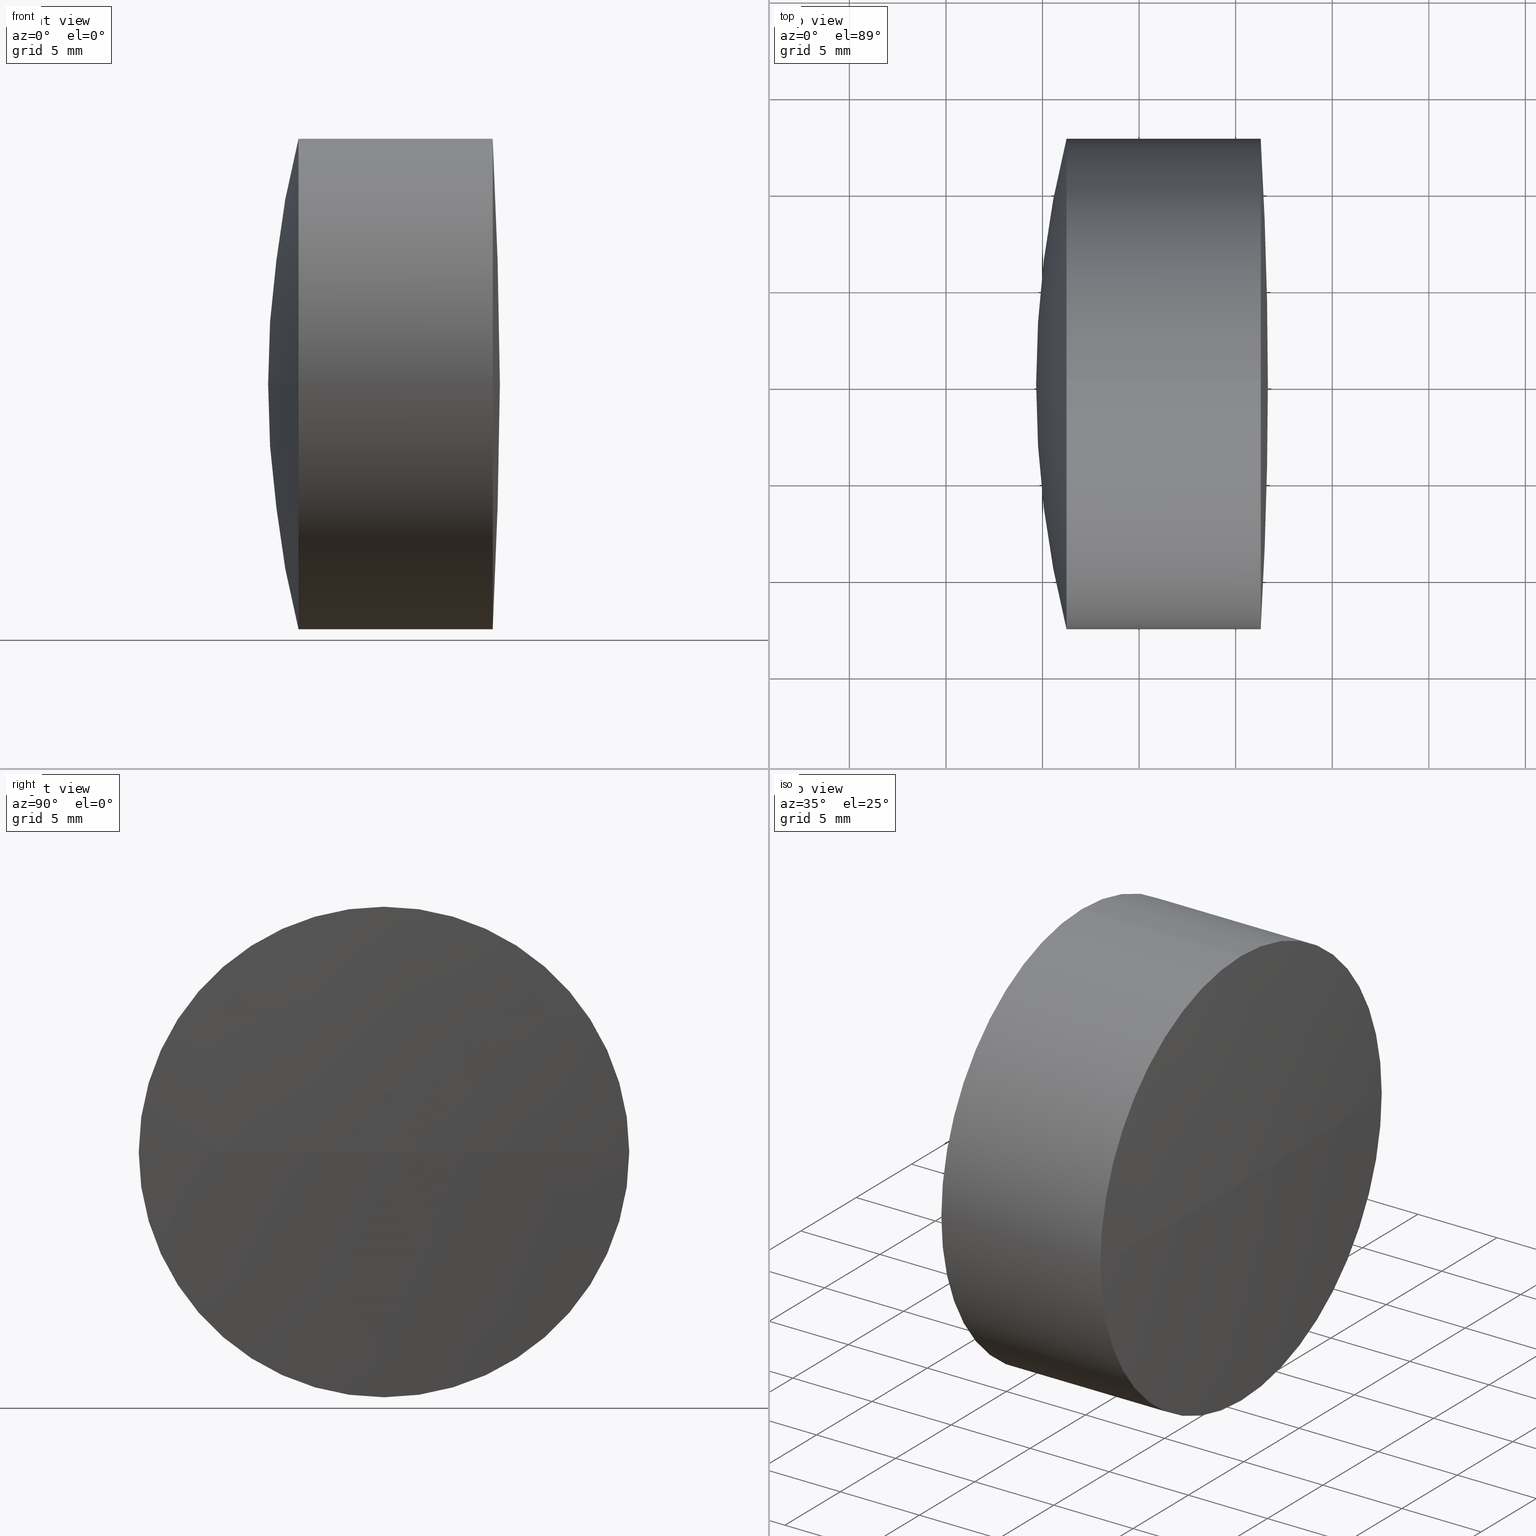
[diagram: canonical four-view strip — front | top / right | iso, engineering-drawing reading convention]
A machine part, canonical four-view strip (front | top / right | iso — engineering-drawing reading convention). The complete STEP part file that produces these views, byte-faithful:
ISO-10303-21;
HEADER;
FILE_DESCRIPTION (( 'STEP AP203' ),
    '1' );
FILE_NAME ('145277.STEP',
    '2024-05-11T08:07:24',
    ( '' ),
    ( '' ),
    'SwSTEP 2.0',
    'SolidWorks 2020',
    '' );
FILE_SCHEMA (( 'CONFIG_CONTROL_DESIGN' ));
ENDSEC;

DATA;
#1 = COORDINATED_UNIVERSAL_TIME_OFFSET ( 8, 0, .AHEAD. ) ;
#2 = EDGE_CURVE ( 'NONE', #371, #37, #71, .T. ) ;
#3 = DIRECTION ( 'NONE',  ( 0.000000000000000000, 0.000000000000000000, 1.000000000000000000 ) ) ;
#4 = AXIS2_PLACEMENT_3D ( 'NONE', #197, #401, #18 ) ;
#5 = COORDINATED_UNIVERSAL_TIME_OFFSET ( 8, 0, .AHEAD. ) ;
#6 = CC_DESIGN_APPROVAL ( #232, ( #361 ) ) ;
#7 = CARTESIAN_POINT ( 'NONE',  ( -13.75656378347417785, 0.04597092655642146669, 12.69999999999999929 ) ) ;
#8 = EDGE_CURVE ( 'NONE', #280, #40, #249, .T. ) ;
#9 = EDGE_LOOP ( 'NONE', ( #392, #427, #104, #17, #11, #327 ) ) ;
#10 = AXIS2_PLACEMENT_3D ( 'NONE', #446, #35, #73 ) ;
#11 = ORIENTED_EDGE ( 'NONE', *, *, #257, .F. ) ;
#12 = ORIENTED_EDGE ( 'NONE', *, *, #202, .T. ) ;
#13 = DIRECTION ( 'NONE',  ( -1.000000000000000000, -0.000000000000000000, -0.000000000000000000 ) ) ;
#14 = CIRCLE ( 'NONE', #77, 43.35999999999999943 ) ;
#15 = EDGE_LOOP ( 'NONE', ( #201, #159, #430, #196 ) ) ;
#16 = ADVANCED_FACE ( 'NONE', ( #126 ), #199, .T. ) ;
#17 = ORIENTED_EDGE ( 'NONE', *, *, #2, .F. ) ;
#18 = DIRECTION ( 'NONE',  ( 0.000000000000000000, 0.000000000000000000, 1.000000000000000000 ) ) ;
#19 = ORIENTED_EDGE ( 'NONE', *, *, #91, .F. ) ;
#20 = DIRECTION ( 'NONE',  ( -1.000000000000000000, -0.000000000000000000, -0.000000000000000000 ) ) ;
#21 = ORIENTED_EDGE ( 'NONE', *, *, #367, .T. ) ;
#22 = VECTOR ( 'NONE', #51, 1000.000000000000000 ) ;
#23 = CARTESIAN_POINT ( 'NONE',  ( -50.69189733283689492, 0.04597092655641990544, 25.39999999999999858 ) ) ;
#24 = DIRECTION ( 'NONE',  ( 0.000000000000000000, 1.000000000000000000, 0.000000000000000000 ) ) ;
#25 = CC_DESIGN_PERSON_AND_ORGANIZATION_ASSIGNMENT ( #418, #79, ( #361 ) ) ;
#26 = CARTESIAN_POINT ( 'NONE',  ( -7.331897332836893710, 0.04597092655642256304, 25.39999999999999858 ) ) ;
#27 = ORIENTED_EDGE ( 'NONE', *, *, #153, .T. ) ;
#28 = DIRECTION ( 'NONE',  ( 0.000000000000000000, 0.000000000000000000, 1.000000000000000000 ) ) ;
#29 = CALENDAR_DATE ( 2024, 11, 5 ) ;
#30 = ADVANCED_FACE ( 'NONE', ( #259 ), #398, .T. ) ;
#31 = LOCAL_TIME ( 16, 7, 24.00000000000000000, #447 ) ;
#32 = CARTESIAN_POINT ( 'NONE',  ( -7.331897332836897263, 0.04597092655642145975, 12.69999999999999929 ) ) ;
#33 = PERSON_AND_ORGANIZATION ( #260, #177 ) ;
#34 = VECTOR ( 'NONE', #315, 1000.000000000000000 ) ;
#35 = DIRECTION ( 'NONE',  ( 0.000000000000000000, 1.224646799147353207E-16, -1.000000000000000000 ) ) ;
#36 = DIRECTION ( 'NONE',  ( 0.000000000000000000, 0.000000000000000000, 1.000000000000000000 ) ) ;
#37 = VERTEX_POINT ( 'NONE', #129 ) ;
#38 = EDGE_CURVE ( 'NONE', #102, #225, #302, .T. ) ;
#39 = DIRECTION ( 'NONE',  ( -0.000000000000000000, 0.000000000000000000, 1.000000000000000000 ) ) ;
#40 = VERTEX_POINT ( 'NONE', #92 ) ;
#41 = PERSON_AND_ORGANIZATION_ROLE ( 'creator' ) ;
#42 = AXIS2_PLACEMENT_3D ( 'NONE', #62, #437, #172 ) ;
#43 = CIRCLE ( 'NONE', #190, 12.69999999999999574 ) ;
#44 = CLOSED_SHELL ( 'NONE', ( #135, #386, #30, #214, #57, #175 ) ) ;
#45 = DIRECTION ( 'NONE',  ( -0.000000000000000000, 0.000000000000000000, -1.000000000000000000 ) ) ;
#46 = EDGE_CURVE ( 'NONE', #125, #123, #433, .T. ) ;
#47 = LOCAL_TIME ( 16, 7, 24.00000000000000000, #385 ) ;
#48 = EDGE_LOOP ( 'NONE', ( #164, #128, #333, #326 ) ) ;
#49 = DIRECTION ( 'NONE',  ( 0.000000000000000000, 1.000000000000000000, 0.000000000000000000 ) ) ;
#50 = ORIENTED_EDGE ( 'NONE', *, *, #408, .T. ) ;
#51 = DIRECTION ( 'NONE',  ( -1.000000000000000000, -0.000000000000000000, -0.000000000000000000 ) ) ;
#52 = ORIENTED_EDGE ( 'NONE', *, *, #282, .F. ) ;
#53 = DIRECTION ( 'NONE',  ( -1.000000000000000000, -0.000000000000000000, -0.000000000000000000 ) ) ;
#54 = CARTESIAN_POINT ( 'NONE',  ( -9.233489259202418253, 0.04597092655641990544, 38.09999999999999432 ) ) ;
#55 = AXIS2_PLACEMENT_3D ( 'NONE', #419, #362, #291 ) ;
#56 = ORIENTED_EDGE ( 'NONE', *, *, #91, .T. ) ;
#57 = ADVANCED_FACE ( 'NONE', ( #240 ), #103, .T. ) ;
#58 = CARTESIAN_POINT ( 'NONE',  ( -15.33189733283689016, 0.04597092655641990544, 38.09999999999999432 ) ) ;
#59 = EDGE_LOOP ( 'NONE', ( #416, #308, #87, #94 ) ) ;
#60 = CARTESIAN_POINT ( 'NONE',  ( -13.75656378347417963, 12.74597092655643138, 25.39999999999999858 ) ) ;
#61 = ORIENTED_EDGE ( 'NONE', *, *, #46, .T. ) ;
#62 = CARTESIAN_POINT ( 'NONE',  ( -220.7018973328368929, 0.04597092655641990544, 25.39999999999999858 ) ) ;
#63 = EDGE_CURVE ( 'NONE', #125, #203, #303, .T. ) ;
#64 = CARTESIAN_POINT ( 'NONE',  ( -9.233489259202423582, 0.04597092655641990544, 25.39999999999999858 ) ) ;
#65 = MANIFOLD_SOLID_BREP ( '145277a-1-solid1', #44 ) ;
#66 = DIRECTION ( 'NONE',  ( 0.000000000000000000, 0.000000000000000000, 1.000000000000000000 ) ) ;
#67 = CIRCLE ( 'NONE', #320, 12.69999999999999574 ) ;
#68 = EDGE_CURVE ( 'NONE', #203, #115, #278, .T. ) ;
#69 = CARTESIAN_POINT ( 'NONE',  ( -3.703217843767207196, 0.04597092655642145975, 12.69999999999999929 ) ) ;
#70 = PERSON_AND_ORGANIZATION ( #260, #177 ) ;
#71 = CIRCLE ( 'NONE', #112, 12.69999999999999574 ) ;
#72 = DIRECTION ( 'NONE',  ( -1.000000000000000000, -0.000000000000000000, -0.000000000000000000 ) ) ;
#73 = DIRECTION ( 'NONE',  ( 0.000000000000000000, 1.000000000000000000, 1.276881612716976152E-16 ) ) ;
#74 = CALENDAR_DATE ( 2024, 11, 5 ) ;
#75 = CARTESIAN_POINT ( 'NONE',  ( -50.69189733283689492, 0.04597092655641990544, 25.39999999999999858 ) ) ;
#76 = PRODUCT_RELATED_PRODUCT_CATEGORY ( 'detail', '', ( #350 ) ) ;
#77 = AXIS2_PLACEMENT_3D ( 'NONE', #422, #192, #325 ) ;
#78 = DIRECTION ( 'NONE',  ( -1.000000000000000000, -0.000000000000000000, -0.000000000000000000 ) ) ;
#79 = PERSON_AND_ORGANIZATION_ROLE ( 'design_supplier' ) ;
#80 = ORIENTED_EDGE ( 'NONE', *, *, #246, .T. ) ;
#81 = PERSON_AND_ORGANIZATION ( #260, #177 ) ;
#82 = ADVANCED_FACE ( 'NONE', ( #166 ), #96, .F. ) ;
#83 = APPROVAL_STATUS ( 'not_yet_approved' ) ;
#84 = AXIS2_PLACEMENT_3D ( 'NONE', #403, #204, #90 ) ;
#85 = DATE_AND_TIME ( #323, #31 ) ;
#86 = ORIENTED_EDGE ( 'NONE', *, *, #408, .F. ) ;
#87 = ORIENTED_EDGE ( 'NONE', *, *, #355, .T. ) ;
#88 = CARTESIAN_POINT ( 'NONE',  ( -3.703217843767207196, 0.04597092655641990544, 25.39999999999999858 ) ) ;
#89 = DIRECTION ( 'NONE',  ( -1.000000000000000000, -0.000000000000000000, -0.000000000000000000 ) ) ;
#90 = DIRECTION ( 'NONE',  ( 0.000000000000000000, 0.000000000000000000, 1.000000000000000000 ) ) ;
#91 = EDGE_CURVE ( 'NONE', #263, #298, #264, .T. ) ;
#92 = CARTESIAN_POINT ( 'NONE',  ( -9.233489259202420030, -12.65402907344357786, 25.39999999999999858 ) ) ;
#93 = DIRECTION ( 'NONE',  ( 0.000000000000000000, 1.000000000000000000, 0.000000000000000000 ) ) ;
#94 = ORIENTED_EDGE ( 'NONE', *, *, #8, .T. ) ;
#95 = LOCAL_TIME ( 16, 7, 24.00000000000000000, #1 ) ;
#96 = SPHERICAL_SURFACE ( 'NONE', #341, 43.35999999999999943 ) ;
#97 = ORIENTED_EDGE ( 'NONE', *, *, #63, .T. ) ;
#98 = APPLICATION_CONTEXT ( 'configuration controlled 3d designs of mechanical parts and assemblies' ) ;
#99 = EDGE_CURVE ( 'NONE', #337, #271, #357, .T. ) ;
#100 = AXIS2_PLACEMENT_3D ( 'NONE', #279, #181, #344 ) ;
#101 = CARTESIAN_POINT ( 'NONE',  ( -50.69189733283689492, 0.04597092655641990544, 25.39999999999999858 ) ) ;
#102 = VERTEX_POINT ( 'NONE', #239 ) ;
#103 = SPHERICAL_SURFACE ( 'NONE', #221, 43.35999999999999943 ) ;
#104 = ORIENTED_EDGE ( 'NONE', *, *, #355, .F. ) ;
#105 = FACE_OUTER_BOUND ( 'NONE', #431, .T. ) ;
#106 = EDGE_CURVE ( 'NONE', #387, #290, #130, .T. ) ;
#107 = DIRECTION ( 'NONE',  ( -1.000000000000000000, -0.000000000000000000, -0.000000000000000000 ) ) ;
#108 = DATE_AND_TIME ( #346, #155 ) ;
#109 = AXIS2_PLACEMENT_3D ( 'NONE', #200, #13, #270 ) ;
#110 = CARTESIAN_POINT ( 'NONE',  ( -15.33189733283689016, 0.04597092655642146669, 12.69999999999999929 ) ) ;
#111 = CIRCLE ( 'NONE', #359, 12.69999999999999574 ) ;
#112 = AXIS2_PLACEMENT_3D ( 'NONE', #364, #53, #428 ) ;
#113 = CC_DESIGN_SECURITY_CLASSIFICATION ( #421, ( #361 ) ) ;
#114 = CARTESIAN_POINT ( 'NONE',  ( -3.703217843767205419, 12.74597092655644914, 25.39999999999999858 ) ) ;
#115 = VERTEX_POINT ( 'NONE', #60 ) ;
#116 = CC_DESIGN_DATE_AND_TIME_ASSIGNMENT ( #108, #440, ( #306 ) ) ;
#117 = DIRECTION ( 'NONE',  ( -1.000000000000000000, -0.000000000000000000, -0.000000000000000000 ) ) ;
#118 = APPROVAL_DATE_TIME ( #388, #420 ) ;
#119 = AXIS2_PLACEMENT_3D ( 'NONE', #75, #45, #49 ) ;
#120 = ADVANCED_FACE ( 'NONE', ( #432 ), #370, .T. ) ;
#121 = CARTESIAN_POINT ( 'NONE',  ( -220.7018973328368929, 0.04597092655641990544, 25.39999999999999858 ) ) ;
#122 = FACE_OUTER_BOUND ( 'NONE', #9, .T. ) ;
#123 = VERTEX_POINT ( 'NONE', #207 ) ;
#124 = CARTESIAN_POINT ( 'NONE',  ( -7.331897332836897263, 0.04597092655641990544, 25.39999999999999858 ) ) ;
#125 = VERTEX_POINT ( 'NONE', #54 ) ;
#126 = FACE_OUTER_BOUND ( 'NONE', #391, .T. ) ;
#127 = DIRECTION ( 'NONE',  ( 0.000000000000000000, 1.000000000000000000, 0.000000000000000000 ) ) ;
#128 = ORIENTED_EDGE ( 'NONE', *, *, #106, .T. ) ;
#129 = CARTESIAN_POINT ( 'NONE',  ( -9.233489259202420030, 12.74597092655641717, 25.39999999999999858 ) ) ;
#130 = CIRCLE ( 'NONE', #397, 12.69999999999999574 ) ;
#131 = EDGE_LOOP ( 'NONE', ( #389, #269, #27, #97, #198, #193 ) ) ;
#132 = AXIS2_PLACEMENT_3D ( 'NONE', #212, #72, #144 ) ;
#133 = DIRECTION ( 'NONE',  ( -1.000000000000000000, -0.000000000000000000, -0.000000000000000000 ) ) ;
#134 = ORIENTED_EDGE ( 'NONE', *, *, #277, .T. ) ;
#135 = ADVANCED_FACE ( 'NONE', ( #434 ), #136, .T. ) ;
#136 = CYLINDRICAL_SURFACE ( 'NONE', #109, 12.69999999999999574 ) ;
#137 = ORIENTED_EDGE ( 'NONE', *, *, #277, .F. ) ;
#138 = DIRECTION ( 'NONE',  ( -0.000000000000000000, 0.000000000000000000, -1.000000000000000000 ) ) ;
#139 = CARTESIAN_POINT ( 'NONE',  ( -13.75656378347417785, 0.04597092655641990544, 25.39999999999999858 ) ) ;
#140 = APPROVAL_STATUS ( 'not_yet_approved' ) ;
#141 = AXIS2_PLACEMENT_3D ( 'NONE', #121, #39, #256 ) ;
#142 = CARTESIAN_POINT ( 'NONE',  ( -9.233489259202418253, 0.04597092655641990544, 25.39999999999999858 ) ) ;
#143 = ADVANCED_FACE ( 'NONE', ( #162 ), #438, .F. ) ;
#144 = DIRECTION ( 'NONE',  ( 0.000000000000000000, 0.000000000000000000, 1.000000000000000000 ) ) ;
#145 = AXIS2_PLACEMENT_3D ( 'NONE', #332, #20, #336 ) ;
#146 = FACE_OUTER_BOUND ( 'NONE', #131, .T. ) ;
#147 = ORIENTED_EDGE ( 'NONE', *, *, #99, .T. ) ;
#148 = ADVANCED_FACE ( 'NONE', ( #273 ), #297, .T. ) ;
#149 = CARTESIAN_POINT ( 'NONE',  ( -9.233489259202418253, 0.04597092655641990544, 25.39999999999999858 ) ) ;
#150 = PERSON_AND_ORGANIZATION_ROLE ( 'classification_officer' ) ;
#151 = AXIS2_PLACEMENT_3D ( 'NONE', #365, #294, #234 ) ;
#152 = MECHANICAL_CONTEXT ( 'NONE', #353, 'mechanical' ) ;
#153 = EDGE_CURVE ( 'NONE', #271, #125, #188, .T. ) ;
#154 = CARTESIAN_POINT ( 'NONE',  ( -7.331897332836897263, 0.04597092655641990544, 25.39999999999999858 ) ) ;
#155 = LOCAL_TIME ( 16, 7, 24.00000000000000000, #5 ) ;
#156 =( NAMED_UNIT ( * ) PLANE_ANGLE_UNIT ( ) SI_UNIT ( $, .RADIAN. ) );
#157 = ORIENTED_EDGE ( 'NONE', *, *, #179, .T. ) ;
#158 = CIRCLE ( 'NONE', #347, 51.97999999999999687 ) ;
#159 = ORIENTED_EDGE ( 'NONE', *, *, #445, .T. ) ;
#160 = APPROVAL ( #349, 'δָ��' ) ;
#161 = ORIENTED_EDGE ( 'NONE', *, *, #379, .T. ) ;
#162 = FACE_OUTER_BOUND ( 'NONE', #205, .T. ) ;
#163 = DESIGN_CONTEXT ( 'detailed design', #98, 'design' ) ;
#164 = ORIENTED_EDGE ( 'NONE', *, *, #351, .T. ) ;
#165 = DIRECTION ( 'NONE',  ( 0.000000000000000000, 0.000000000000000000, 1.000000000000000000 ) ) ;
#166 = FACE_OUTER_BOUND ( 'NONE', #59, .T. ) ;
#167 = AXIS2_PLACEMENT_3D ( 'NONE', #266, #399, #93 ) ;
#168 = EDGE_CURVE ( 'NONE', #225, #263, #67, .T. ) ;
#169 = AXIS2_PLACEMENT_3D ( 'NONE', #149, #443, #313 ) ;
#170 = DIRECTION ( 'NONE',  ( -0.000000000000000000, 0.000000000000000000, -1.000000000000000000 ) ) ;
#171 = CC_DESIGN_APPROVAL ( #420, ( #306 ) ) ;
#172 = DIRECTION ( 'NONE',  ( 0.000000000000000000, 1.000000000000000000, 0.000000000000000000 ) ) ;
#173 = EDGE_LOOP ( 'NONE', ( #134, #157, #293, #227, #295, #61 ) ) ;
#174 = SPHERICAL_SURFACE ( 'NONE', #404, 51.97999999999999687 ) ;
#175 = ADVANCED_FACE ( 'NONE', ( #146 ), #439, .T. ) ;
#176 = DIRECTION ( 'NONE',  ( -0.000000000000000000, 0.000000000000000000, 1.000000000000000000 ) ) ;
#177 = ORGANIZATION ( 'δָ��', 'δָ��', '' ) ;
#178 = CIRCLE ( 'NONE', #369, 51.97999999999999687 ) ;
#179 = EDGE_CURVE ( 'NONE', #230, #387, #215, .T. ) ;
#180 = PRODUCT_DEFINITION_SHAPE ( 'NONE', 'NONE',  #306 ) ;
#181 = DIRECTION ( 'NONE',  ( -1.000000000000000000, -0.000000000000000000, -0.000000000000000000 ) ) ;
#182 = APPROVAL_ROLE ( '' ) ;
#183 = APPLICATION_PROTOCOL_DEFINITION ( 'international standard', 'config_control_design', 1994, #98 ) ;
#184 = PERSON_AND_ORGANIZATION_ROLE ( 'creator' ) ;
#185 = ORIENTED_EDGE ( 'NONE', *, *, #241, .T. ) ;
#186 = SPHERICAL_SURFACE ( 'NONE', #119, 43.35999999999999943 ) ;
#187 = ORIENTED_EDGE ( 'NONE', *, *, #153, .F. ) ;
#188 = CIRCLE ( 'NONE', #145, 12.69999999999999574 ) ;
#189 = DIRECTION ( 'NONE',  ( 0.000000000000000000, 0.000000000000000000, 1.000000000000000000 ) ) ;
#190 = AXIS2_PLACEMENT_3D ( 'NONE', #142, #117, #28 ) ;
#191 = AXIS2_PLACEMENT_3D ( 'NONE', #261, #395, #265 ) ;
#192 = DIRECTION ( 'NONE',  ( -0.000000000000000000, 0.000000000000000000, 1.000000000000000000 ) ) ;
#193 = ORIENTED_EDGE ( 'NONE', *, *, #106, .F. ) ;
#194 = CARTESIAN_POINT ( 'NONE',  ( -9.233489259202423582, 0.04597092655641990544, 38.09999999999999432 ) ) ;
#195 = EDGE_CURVE ( 'NONE', #290, #363, #178, .T. ) ;
#196 = ORIENTED_EDGE ( 'NONE', *, *, #379, .F. ) ;
#197 = CARTESIAN_POINT ( 'NONE',  ( -13.75656378347417785, 0.04597092655641990544, 25.39999999999999858 ) ) ;
#198 = ORIENTED_EDGE ( 'NONE', *, *, #202, .F. ) ;
#199 = CYLINDRICAL_SURFACE ( 'NONE', #377, 12.69999999999999574 ) ;
#200 = CARTESIAN_POINT ( 'NONE',  ( -15.33189733283689016, 0.04597092655641990544, 25.39999999999999858 ) ) ;
#201 = ORIENTED_EDGE ( 'NONE', *, *, #246, .F. ) ;
#202 = EDGE_CURVE ( 'NONE', #290, #203, #238, .T. ) ;
#203 = VERTEX_POINT ( 'NONE', #310 ) ;
#204 = DIRECTION ( 'NONE',  ( -1.000000000000000000, -0.000000000000000000, -0.000000000000000000 ) ) ;
#205 = EDGE_LOOP ( 'NONE', ( #305, #21, #206, #324 ) ) ;
#206 = ORIENTED_EDGE ( 'NONE', *, *, #287, .T. ) ;
#207 = CARTESIAN_POINT ( 'NONE',  ( -9.233489259202416477, 12.74597092655641717, 25.39999999999999858 ) ) ;
#208 = ORIENTED_EDGE ( 'NONE', *, *, #445, .F. ) ;
#209 = CARTESIAN_POINT ( 'NONE',  ( -50.69189733283689492, 0.04597092655641990544, 25.39999999999999858 ) ) ;
#210 = CC_DESIGN_PERSON_AND_ORGANIZATION_ASSIGNMENT ( #70, #184, ( #361 ) ) ;
#211 = DIRECTION ( 'NONE',  ( -0.000000000000000000, 0.000000000000000000, 1.000000000000000000 ) ) ;
#212 = CARTESIAN_POINT ( 'NONE',  ( -9.233489259202423582, 0.04597092655641990544, 25.39999999999999858 ) ) ;
#213 = APPROVAL_PERSON_ORGANIZATION ( #33, #232, #373 ) ;
#214 = ADVANCED_FACE ( 'NONE', ( #105 ), #174, .T. ) ;
#215 = LINE ( 'NONE', #110, #289 ) ;
#216 = CARTESIAN_POINT ( 'NONE',  ( 36.64810266716310139, 0.04597092655641990544, 25.39999999999999858 ) ) ;
#217 = CIRCLE ( 'NONE', #10, 217.3700000000000045 ) ;
#218 = SECURITY_CLASSIFICATION_LEVEL ( 'unclassified' ) ;
#219 = DATE_AND_TIME ( #74, #47 ) ;
#220 = CARTESIAN_POINT ( 'NONE',  ( -15.33189733283689371, 0.04597092655642309039, 25.39999999999999858 ) ) ;
#221 = AXIS2_PLACEMENT_3D ( 'NONE', #236, #334, #127 ) ;
#222 = CARTESIAN_POINT ( 'NONE',  ( -3.703217843767207196, 0.04597092655641990544, 25.39999999999999858 ) ) ;
#223 = CARTESIAN_POINT ( 'NONE',  ( -7.331897332836893710, 0.04597092655642255610, 25.39999999999999858 ) ) ;
#224 = EDGE_CURVE ( 'NONE', #263, #280, #345, .T. ) ;
#225 = VERTEX_POINT ( 'NONE', #114 ) ;
#226 = LINE ( 'NONE', #317, #374 ) ;
#227 = ORIENTED_EDGE ( 'NONE', *, *, #68, .F. ) ;
#228 = DIRECTION ( 'NONE',  ( 0.000000000000000000, 0.000000000000000000, 1.000000000000000000 ) ) ;
#229 = CARTESIAN_POINT ( 'NONE',  ( -13.75656378347417785, 0.04597092655641990544, 25.39999999999999858 ) ) ;
#230 = VERTEX_POINT ( 'NONE', #372 ) ;
#231 = MANIFOLD_SOLID_BREP ( '145277b-1-solid1', #322 ) ;
#232 = APPROVAL ( #140, 'δָ��' ) ;
#233 = DIRECTION ( 'NONE',  ( -1.000000000000000000, -0.000000000000000000, -0.000000000000000000 ) ) ;
#234 = DIRECTION ( 'NONE',  ( 0.000000000000000000, 0.000000000000000000, 1.000000000000000000 ) ) ;
#235 = AXIS2_PLACEMENT_3D ( 'NONE', #286, #3, #253 ) ;
#236 = CARTESIAN_POINT ( 'NONE',  ( -50.69189733283689492, 0.04597092655641990544, 25.39999999999999858 ) ) ;
#237 = ORIENTED_EDGE ( 'NONE', *, *, #8, .F. ) ;
#238 = CIRCLE ( 'NONE', #424, 12.69999999999999574 ) ;
#239 = CARTESIAN_POINT ( 'NONE',  ( -3.703217843767207196, 0.04597092655641990544, 38.09999999999999432 ) ) ;
#240 = FACE_OUTER_BOUND ( 'NONE', #400, .T. ) ;
#241 = EDGE_CURVE ( 'NONE', #115, #363, #158, .T. ) ;
#242 = DIRECTION ( 'NONE',  ( 0.000000000000000000, 1.000000000000000000, 0.000000000000000000 ) ) ;
#243 = CARTESIAN_POINT ( 'NONE',  ( -3.331897332836897263, 0.04597092655643320730, 25.39999999999999858 ) ) ;
#244 = APPROVAL_DATE_TIME ( #312, #232 ) ;
#245 = AXIS2_PLACEMENT_3D ( 'NONE', #406, #138, #429 ) ;
#246 = EDGE_CURVE ( 'NONE', #354, #298, #217, .T. ) ;
#247 = AXIS2_PLACEMENT_3D ( 'NONE', #64, #248, #444 ) ;
#248 = DIRECTION ( 'NONE',  ( -1.000000000000000000, -0.000000000000000000, -0.000000000000000000 ) ) ;
#249 = CIRCLE ( 'NONE', #360, 12.69999999999999574 ) ;
#250 = APPROVAL_PERSON_ORGANIZATION ( #356, #420, #319 ) ;
#251 = CARTESIAN_POINT ( 'NONE',  ( 36.64810266716310139, 0.04597092655641990544, 25.39999999999999858 ) ) ;
#252 = PERSON_AND_ORGANIZATION ( #260, #177 ) ;
#253 = DIRECTION ( 'NONE',  ( 1.000000000000000000, 0.000000000000000000, 0.000000000000000000 ) ) ;
#254 = AXIS2_PLACEMENT_3D ( 'NONE', #154, #78, #36 ) ;
#255 = PERSON_AND_ORGANIZATION_ROLE ( 'design_owner' ) ;
#256 = DIRECTION ( 'NONE',  ( 1.000000000000000000, 0.000000000000000000, 0.000000000000000000 ) ) ;
#257 = EDGE_CURVE ( 'NONE', #102, #371, #226, .T. ) ;
#258 = ORIENTED_EDGE ( 'NONE', *, *, #224, .F. ) ;
#259 = FACE_OUTER_BOUND ( 'NONE', #48, .T. ) ;
#260 = PERSON ( 'δָ��', 'δָ��', 'δָ��', ('δָ��'), ('δָ��'), ('δָ��') ) ;
#261 = CARTESIAN_POINT ( 'NONE',  ( 36.64810266716310139, 0.04597092655641990544, 25.39999999999999858 ) ) ;
#262 = DIRECTION ( 'NONE',  ( 0.000000000000000000, 1.224646799147353207E-16, -1.000000000000000000 ) ) ;
#263 = VERTEX_POINT ( 'NONE', #69 ) ;
#264 = CIRCLE ( 'NONE', #84, 12.69999999999999574 ) ;
#265 = DIRECTION ( 'NONE',  ( 0.000000000000000000, 1.000000000000000000, 0.000000000000000000 ) ) ;
#266 = CARTESIAN_POINT ( 'NONE',  ( -220.7018973328368929, 0.04597092655641990544, 25.39999999999999858 ) ) ;
#267 = DIRECTION ( 'NONE',  ( 0.000000000000000000, 0.000000000000000000, 1.000000000000000000 ) ) ;
#268 = APPROVAL_PERSON_ORGANIZATION ( #252, #160, #182 ) ;
#269 = ORIENTED_EDGE ( 'NONE', *, *, #282, .T. ) ;
#270 = DIRECTION ( 'NONE',  ( 0.000000000000000000, 0.000000000000000000, 1.000000000000000000 ) ) ;
#271 = VERTEX_POINT ( 'NONE', #411 ) ;
#272 = CC_DESIGN_PERSON_AND_ORGANIZATION_ASSIGNMENT ( #81, #41, ( #306 ) ) ;
#273 = FACE_OUTER_BOUND ( 'NONE', #15, .T. ) ;
#274 = DIRECTION ( 'NONE',  ( -1.000000000000000000, -0.000000000000000000, -0.000000000000000000 ) ) ;
#275 = CIRCLE ( 'NONE', #442, 12.69999999999999574 ) ;
#276 = CARTESIAN_POINT ( 'NONE',  ( -13.75656378347417963, -12.65402907344359207, 25.39999999999999858 ) ) ;
#277 = EDGE_CURVE ( 'NONE', #123, #230, #376, .T. ) ;
#278 = CIRCLE ( 'NONE', #4, 12.69999999999999574 ) ;
#279 = CARTESIAN_POINT ( 'NONE',  ( -15.33189733283689016, 0.04597092655641990544, 25.39999999999999858 ) ) ;
#280 = VERTEX_POINT ( 'NONE', #281 ) ;
#281 = CARTESIAN_POINT ( 'NONE',  ( -9.233489259202423582, 0.04597092655642145975, 12.69999999999999929 ) ) ;
#282 = EDGE_CURVE ( 'NONE', #230, #271, #43, .T. ) ;
#283 = CALENDAR_DATE ( 2024, 11, 5 ) ;
#284 = PERSON_AND_ORGANIZATION ( #260, #177 ) ;
#285 = LOCAL_TIME ( 16, 7, 24.00000000000000000, #343 ) ;
#286 = CARTESIAN_POINT ( 'NONE',  ( 0.000000000000000000, 0.000000000000000000, 0.000000000000000000 ) ) ;
#287 = EDGE_CURVE ( 'NONE', #40, #371, #435, .T. ) ;
#288 = DIRECTION ( 'NONE',  ( -1.000000000000000000, -0.000000000000000000, -0.000000000000000000 ) ) ;
#289 = VECTOR ( 'NONE', #274, 1000.000000000000000 ) ;
#290 = VERTEX_POINT ( 'NONE', #276 ) ;
#291 = DIRECTION ( 'NONE',  ( 0.000000000000000000, 1.000000000000000000, 1.600298409572700259E-16 ) ) ;
#292 = ORIENTED_EDGE ( 'NONE', *, *, #46, .F. ) ;
#293 = ORIENTED_EDGE ( 'NONE', *, *, #351, .F. ) ;
#294 = DIRECTION ( 'NONE',  ( -1.000000000000000000, -0.000000000000000000, -0.000000000000000000 ) ) ;
#295 = ORIENTED_EDGE ( 'NONE', *, *, #63, .F. ) ;
#296 = DIRECTION ( 'NONE',  ( 0.000000000000000000, 0.000000000000000000, 1.000000000000000000 ) ) ;
#297 = SPHERICAL_SURFACE ( 'NONE', #167, 217.3700000000000045 ) ;
#298 = VERTEX_POINT ( 'NONE', #409 ) ;
#299 = AXIS2_PLACEMENT_3D ( 'NONE', #88, #89, #228 ) ;
#300 = CARTESIAN_POINT ( 'NONE',  ( -3.703217843767207196, 0.04597092655641990544, 25.39999999999999858 ) ) ;
#301 = AXIS2_PLACEMENT_3D ( 'NONE', #209, #211, #338 ) ;
#302 = CIRCLE ( 'NONE', #299, 12.69999999999999574 ) ;
#303 = LINE ( 'NONE', #58, #22 ) ;
#304 = CC_DESIGN_APPROVAL ( #160, ( #421 ) ) ;
#305 = ORIENTED_EDGE ( 'NONE', *, *, #335, .F. ) ;
#306 = PRODUCT_DEFINITION ( 'δ֪', '', #361, #163 ) ;
#307 = CARTESIAN_POINT ( 'NONE',  ( -13.75656378347417785, 0.04597092655641990544, 25.39999999999999858 ) ) ;
#308 = ORIENTED_EDGE ( 'NONE', *, *, #335, .T. ) ;
#309 = CC_DESIGN_PERSON_AND_ORGANIZATION_ASSIGNMENT ( #284, #255, ( #350 ) ) ;
#310 = CARTESIAN_POINT ( 'NONE',  ( -13.75656378347417785, 0.04597092655641990544, 38.09999999999999432 ) ) ;
#311 = CIRCLE ( 'NONE', #141, 217.3700000000000045 ) ;
#312 = DATE_AND_TIME ( #29, #285 ) ;
#313 = DIRECTION ( 'NONE',  ( 0.000000000000000000, 0.000000000000000000, 1.000000000000000000 ) ) ;
#314 = UNCERTAINTY_MEASURE_WITH_UNIT (LENGTH_MEASURE( 1.000000000000000082E-05 ), #382, 'distance_accuracy_value', 'NONE');
#315 = DIRECTION ( 'NONE',  ( -1.000000000000000000, -0.000000000000000000, -0.000000000000000000 ) ) ;
#316 = ORIENTED_EDGE ( 'NONE', *, *, #99, .F. ) ;
#317 = CARTESIAN_POINT ( 'NONE',  ( -7.331897332836897263, 0.04597092655641990544, 38.09999999999999432 ) ) ;
#318 = CC_DESIGN_DATE_AND_TIME_ASSIGNMENT ( #219, #414, ( #421 ) ) ;
#319 = APPROVAL_ROLE ( '' ) ;
#320 = AXIS2_PLACEMENT_3D ( 'NONE', #300, #133, #267 ) ;
#321 = CIRCLE ( 'NONE', #301, 43.35999999999999943 ) ;
#322 = CLOSED_SHELL ( 'NONE', ( #426, #120, #143, #82, #148, #16 ) ) ;
#323 = CALENDAR_DATE ( 2024, 11, 5 ) ;
#324 = ORIENTED_EDGE ( 'NONE', *, *, #2, .T. ) ;
#325 = DIRECTION ( 'NONE',  ( 1.000000000000000000, 0.000000000000000000, 0.000000000000000000 ) ) ;
#326 = ORIENTED_EDGE ( 'NONE', *, *, #241, .F. ) ;
#327 = ORIENTED_EDGE ( 'NONE', *, *, #38, .T. ) ;
#328 = CIRCLE ( 'NONE', #55, 43.35999999999999943 ) ;
#329 = DIRECTION ( 'NONE',  ( -1.000000000000000000, -0.000000000000000000, -0.000000000000000000 ) ) ;
#330 = DIRECTION ( 'NONE',  ( -1.000000000000000000, -0.000000000000000000, -0.000000000000000000 ) ) ;
#331 = ORIENTED_EDGE ( 'NONE', *, *, #287, .F. ) ;
#332 = CARTESIAN_POINT ( 'NONE',  ( -9.233489259202418253, 0.04597092655641990544, 25.39999999999999858 ) ) ;
#333 = ORIENTED_EDGE ( 'NONE', *, *, #195, .T. ) ;
#334 = DIRECTION ( 'NONE',  ( -0.000000000000000000, 0.000000000000000000, -1.000000000000000000 ) ) ;
#335 = EDGE_CURVE ( 'NONE', #405, #37, #321, .T. ) ;
#336 = DIRECTION ( 'NONE',  ( 0.000000000000000000, 0.000000000000000000, 1.000000000000000000 ) ) ;
#337 = VERTEX_POINT ( 'NONE', #26 ) ;
#338 = DIRECTION ( 'NONE',  ( 1.000000000000000000, 0.000000000000000000, 0.000000000000000000 ) ) ;
#339 = ORIENTED_EDGE ( 'NONE', *, *, #195, .F. ) ;
#340 = ADVANCED_BREP_SHAPE_REPRESENTATION ( '145277', ( #231, #65, #235 ), #415 ) ;
#341 = AXIS2_PLACEMENT_3D ( 'NONE', #101, #170, #24 ) ;
#342 = DIRECTION ( 'NONE',  ( 0.000000000000000000, 1.000000000000000000, 1.334916103098735929E-16 ) ) ;
#343 = COORDINATED_UNIVERSAL_TIME_OFFSET ( 8, 0, .AHEAD. ) ;
#344 = DIRECTION ( 'NONE',  ( 0.000000000000000000, 0.000000000000000000, 1.000000000000000000 ) ) ;
#345 = LINE ( 'NONE', #32, #34 ) ;
#346 = CALENDAR_DATE ( 2024, 11, 5 ) ;
#347 = AXIS2_PLACEMENT_3D ( 'NONE', #251, #176, #348 ) ;
#348 = DIRECTION ( 'NONE',  ( 1.000000000000000000, 0.000000000000000000, 0.000000000000000000 ) ) ;
#349 = APPROVAL_STATUS ( 'not_yet_approved' ) ;
#350 = PRODUCT ( '145277', '145277', '', ( #152 ) ) ;
#351 = EDGE_CURVE ( 'NONE', #115, #387, #111, .T. ) ;
#352 = APPLICATION_PROTOCOL_DEFINITION ( 'international standard', 'config_control_design', 1994, #353 ) ;
#353 = APPLICATION_CONTEXT ( 'configuration controlled 3d designs of mechanical parts and assemblies' ) ;
#354 = VERTEX_POINT ( 'NONE', #243 ) ;
#355 = EDGE_CURVE ( 'NONE', #37, #280, #412, .T. ) ;
#356 = PERSON_AND_ORGANIZATION ( #260, #177 ) ;
#357 = CIRCLE ( 'NONE', #410, 43.35999999999999943 ) ;
#358 = FACE_OUTER_BOUND ( 'NONE', #436, .T. ) ;
#359 = AXIS2_PLACEMENT_3D ( 'NONE', #307, #107, #378 ) ;
#360 = AXIS2_PLACEMENT_3D ( 'NONE', #366, #233, #165 ) ;
#361 = PRODUCT_DEFINITION_FORMATION_WITH_SPECIFIED_SOURCE ( '�κ�', '', #350, .NOT_KNOWN. ) ;
#362 = DIRECTION ( 'NONE',  ( 0.000000000000000000, 1.224646799147353207E-16, -1.000000000000000000 ) ) ;
#363 = VERTEX_POINT ( 'NONE', #220 ) ;
#364 = CARTESIAN_POINT ( 'NONE',  ( -9.233489259202423582, 0.04597092655641990544, 25.39999999999999858 ) ) ;
#365 = CARTESIAN_POINT ( 'NONE',  ( -9.233489259202418253, 0.04597092655641990544, 25.39999999999999858 ) ) ;
#366 = CARTESIAN_POINT ( 'NONE',  ( -9.233489259202423582, 0.04597092655641990544, 25.39999999999999858 ) ) ;
#367 = EDGE_CURVE ( 'NONE', #405, #40, #328, .T. ) ;
#368 = DIRECTION ( 'NONE',  ( 0.000000000000000000, 1.000000000000000000, 1.600298409572700259E-16 ) ) ;
#369 = AXIS2_PLACEMENT_3D ( 'NONE', #413, #375, #342 ) ;
#370 = SPHERICAL_SURFACE ( 'NONE', #42, 217.3700000000000045 ) ;
#371 = VERTEX_POINT ( 'NONE', #194 ) ;
#372 = CARTESIAN_POINT ( 'NONE',  ( -9.233489259202418253, 0.04597092655642146669, 12.69999999999999929 ) ) ;
#373 = APPROVAL_ROLE ( '' ) ;
#374 = VECTOR ( 'NONE', #417, 1000.000000000000000 ) ;
#375 = DIRECTION ( 'NONE',  ( 0.000000000000000000, 1.224646799147353207E-16, -1.000000000000000000 ) ) ;
#376 = CIRCLE ( 'NONE', #169, 12.69999999999999574 ) ;
#377 = AXIS2_PLACEMENT_3D ( 'NONE', #124, #329, #296 ) ;
#378 = DIRECTION ( 'NONE',  ( 0.000000000000000000, 0.000000000000000000, 1.000000000000000000 ) ) ;
#379 = EDGE_CURVE ( 'NONE', #298, #102, #275, .T. ) ;
#380 = DIRECTION ( 'NONE',  ( -0.000000000000000000, 0.000000000000000000, -1.000000000000000000 ) ) ;
#381 = PERSON_AND_ORGANIZATION ( #260, #177 ) ;
#382 =( LENGTH_UNIT ( ) NAMED_UNIT ( * ) SI_UNIT ( .MILLI., .METRE. ) );
#383 = APPROVAL_DATE_TIME ( #85, #160 ) ;
#384 = CYLINDRICAL_SURFACE ( 'NONE', #254, 12.69999999999999574 ) ;
#385 = COORDINATED_UNIVERSAL_TIME_OFFSET ( 8, 0, .AHEAD. ) ;
#386 = ADVANCED_FACE ( 'NONE', ( #358 ), #186, .T. ) ;
#387 = VERTEX_POINT ( 'NONE', #7 ) ;
#388 = DATE_AND_TIME ( #283, #95 ) ;
#389 = ORIENTED_EDGE ( 'NONE', *, *, #179, .F. ) ;
#390 =( NAMED_UNIT ( * ) SI_UNIT ( $, .STERADIAN. ) SOLID_ANGLE_UNIT ( ) );
#391 = EDGE_LOOP ( 'NONE', ( #258, #56, #161, #425, #331, #237 ) ) ;
#392 = ORIENTED_EDGE ( 'NONE', *, *, #168, .T. ) ;
#393 = CC_DESIGN_PERSON_AND_ORGANIZATION_ASSIGNMENT ( #381, #150, ( #421 ) ) ;
#394 = EDGE_LOOP ( 'NONE', ( #208, #80, #19, #441 ) ) ;
#395 = DIRECTION ( 'NONE',  ( -0.000000000000000000, 0.000000000000000000, -1.000000000000000000 ) ) ;
#396 = DIRECTION ( 'NONE',  ( 0.000000000000000000, 0.000000000000000000, 1.000000000000000000 ) ) ;
#397 = AXIS2_PLACEMENT_3D ( 'NONE', #229, #330, #396 ) ;
#398 = SPHERICAL_SURFACE ( 'NONE', #191, 51.97999999999999687 ) ;
#399 = DIRECTION ( 'NONE',  ( -0.000000000000000000, 0.000000000000000000, -1.000000000000000000 ) ) ;
#400 = EDGE_LOOP ( 'NONE', ( #316, #50, #292, #187 ) ) ;
#401 = DIRECTION ( 'NONE',  ( -1.000000000000000000, -0.000000000000000000, -0.000000000000000000 ) ) ;
#402 = ORIENTED_EDGE ( 'NONE', *, *, #68, .T. ) ;
#403 = CARTESIAN_POINT ( 'NONE',  ( -3.703217843767207196, 0.04597092655641990544, 25.39999999999999858 ) ) ;
#404 = AXIS2_PLACEMENT_3D ( 'NONE', #216, #380, #242 ) ;
#405 = VERTEX_POINT ( 'NONE', #223 ) ;
#406 = CARTESIAN_POINT ( 'NONE',  ( -50.69189733283689492, 0.04597092655641990544, 25.39999999999999858 ) ) ;
#407 = DIRECTION ( 'NONE',  ( -1.000000000000000000, -0.000000000000000000, -0.000000000000000000 ) ) ;
#408 = EDGE_CURVE ( 'NONE', #337, #123, #14, .T. ) ;
#409 = CARTESIAN_POINT ( 'NONE',  ( -3.703217843767205419, -12.65402907344360983, 25.39999999999999858 ) ) ;
#410 = AXIS2_PLACEMENT_3D ( 'NONE', #23, #262, #368 ) ;
#411 = CARTESIAN_POINT ( 'NONE',  ( -9.233489259202416477, -12.65402907344357786, 25.39999999999999858 ) ) ;
#412 = CIRCLE ( 'NONE', #132, 12.69999999999999574 ) ;
#413 = CARTESIAN_POINT ( 'NONE',  ( 36.64810266716310139, 0.04597092655641990544, 25.39999999999999858 ) ) ;
#414 = DATE_TIME_ROLE ( 'classification_date' ) ;
#415 =( GEOMETRIC_REPRESENTATION_CONTEXT ( 3 ) GLOBAL_UNCERTAINTY_ASSIGNED_CONTEXT ( ( #314 ) ) GLOBAL_UNIT_ASSIGNED_CONTEXT ( ( #382, #156, #390 ) ) REPRESENTATION_CONTEXT ( 'NONE', 'WORKASPACE' ) );
#416 = ORIENTED_EDGE ( 'NONE', *, *, #367, .F. ) ;
#417 = DIRECTION ( 'NONE',  ( -1.000000000000000000, -0.000000000000000000, -0.000000000000000000 ) ) ;
#418 = PERSON_AND_ORGANIZATION ( #260, #177 ) ;
#419 = CARTESIAN_POINT ( 'NONE',  ( -50.69189733283689492, 0.04597092655641990544, 25.39999999999999858 ) ) ;
#420 = APPROVAL ( #83, 'δָ��' ) ;
#421 = SECURITY_CLASSIFICATION ( '', '', #218 ) ;
#422 = CARTESIAN_POINT ( 'NONE',  ( -50.69189733283689492, 0.04597092655641990544, 25.39999999999999858 ) ) ;
#423 = SHAPE_DEFINITION_REPRESENTATION ( #180, #340 ) ;
#424 = AXIS2_PLACEMENT_3D ( 'NONE', #139, #407, #66 ) ;
#425 = ORIENTED_EDGE ( 'NONE', *, *, #257, .T. ) ;
#426 = ADVANCED_FACE ( 'NONE', ( #122 ), #384, .T. ) ;
#427 = ORIENTED_EDGE ( 'NONE', *, *, #224, .T. ) ;
#428 = DIRECTION ( 'NONE',  ( 0.000000000000000000, 0.000000000000000000, 1.000000000000000000 ) ) ;
#429 = DIRECTION ( 'NONE',  ( 0.000000000000000000, 1.000000000000000000, 0.000000000000000000 ) ) ;
#430 = ORIENTED_EDGE ( 'NONE', *, *, #38, .F. ) ;
#431 = EDGE_LOOP ( 'NONE', ( #339, #12, #402, #185 ) ) ;
#432 = FACE_OUTER_BOUND ( 'NONE', #394, .T. ) ;
#433 = CIRCLE ( 'NONE', #151, 12.69999999999999574 ) ;
#434 = FACE_OUTER_BOUND ( 'NONE', #173, .T. ) ;
#435 = CIRCLE ( 'NONE', #247, 12.69999999999999574 ) ;
#436 = EDGE_LOOP ( 'NONE', ( #86, #147, #52, #137 ) ) ;
#437 = DIRECTION ( 'NONE',  ( -0.000000000000000000, 0.000000000000000000, -1.000000000000000000 ) ) ;
#438 = SPHERICAL_SURFACE ( 'NONE', #245, 43.35999999999999943 ) ;
#439 = CYLINDRICAL_SURFACE ( 'NONE', #100, 12.69999999999999574 ) ;
#440 = DATE_TIME_ROLE ( 'creation_date' ) ;
#441 = ORIENTED_EDGE ( 'NONE', *, *, #168, .F. ) ;
#442 = AXIS2_PLACEMENT_3D ( 'NONE', #222, #288, #189 ) ;
#443 = DIRECTION ( 'NONE',  ( -1.000000000000000000, -0.000000000000000000, -0.000000000000000000 ) ) ;
#444 = DIRECTION ( 'NONE',  ( 0.000000000000000000, 0.000000000000000000, 1.000000000000000000 ) ) ;
#445 = EDGE_CURVE ( 'NONE', #354, #225, #311, .T. ) ;
#446 = CARTESIAN_POINT ( 'NONE',  ( -220.7018973328368929, 0.04597092655641990544, 25.39999999999999858 ) ) ;
#447 = COORDINATED_UNIVERSAL_TIME_OFFSET ( 8, 0, .AHEAD. ) ;
ENDSEC;
END-ISO-10303-21;
